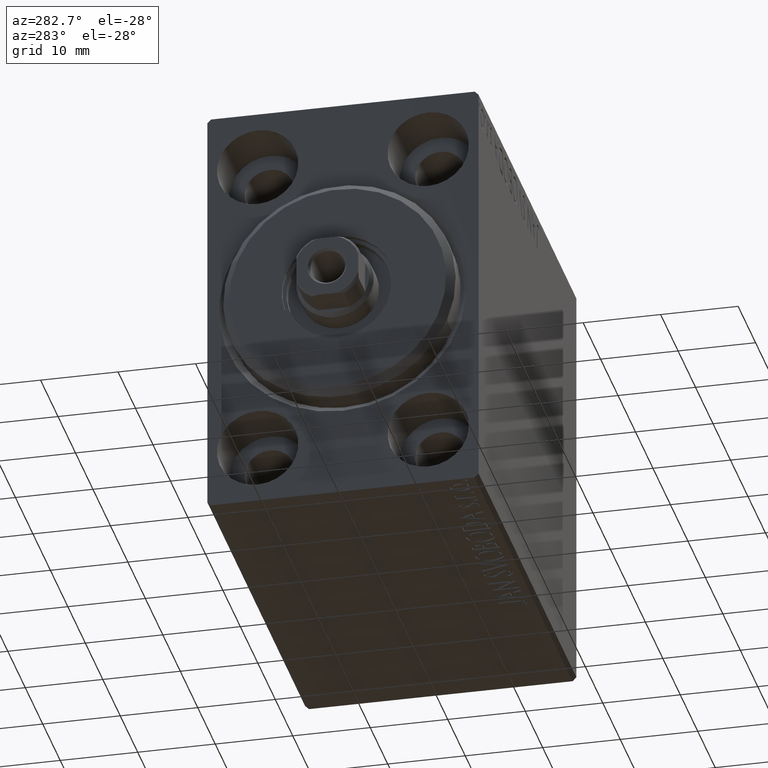
[diagram: clean part render]
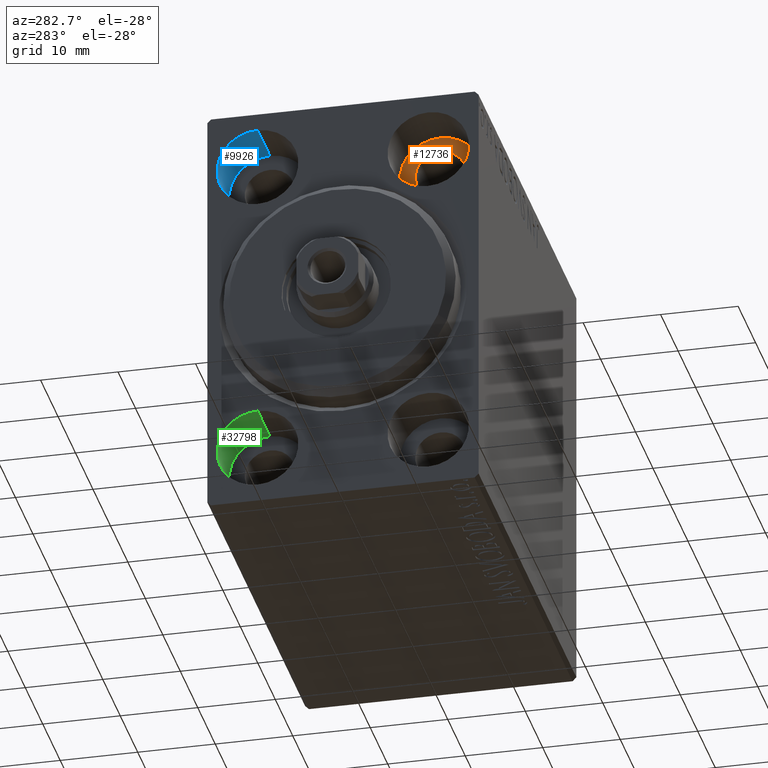
[diagram: same view with three faces highlighted in distinct colors, each labeled with its STEP entity id]
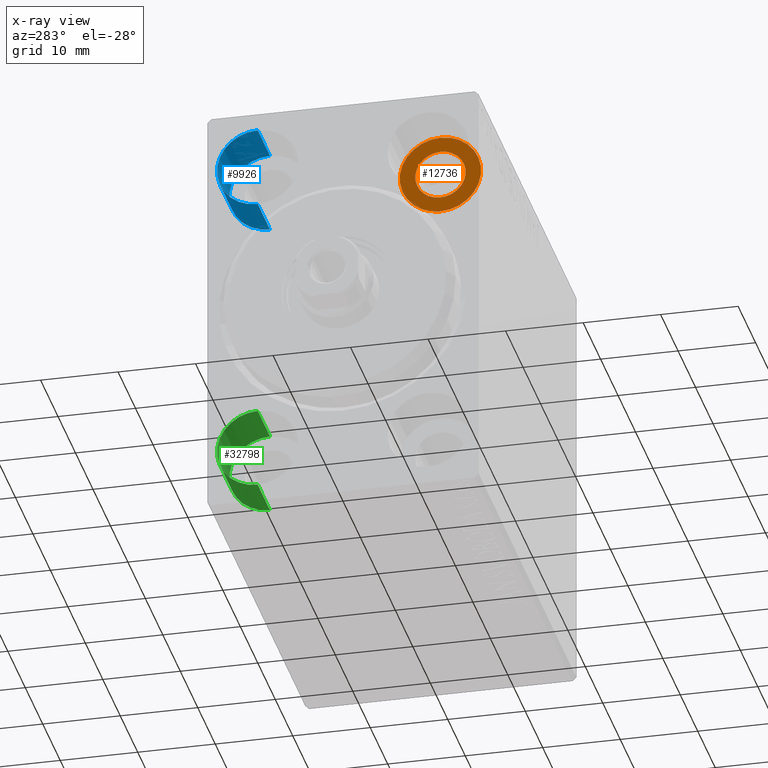
[diagram: x-ray of the same camera — body ghosted, the three highlighted faces saturated]
A machine part, auxiliary view with three faces highlighted in distinct colors.
The next image is the same camera in x-ray (body ghosted, the three faces saturated) — at least one of them is partly hidden behind the body in this view.
Their STEP definitions:

[orange] entity #12736 — the highlighted planar face has unit normal (-1, 0, 0).
#2718 = CIRCLE ( 'NONE', #39576, 5.250000000000000888 ) ;
#2827 = CIRCLE ( 'NONE', #37586, 3.249999999999999556 ) ;
#3127 = VERTEX_POINT ( 'NONE', #29700 ) ;
#3222 = CIRCLE ( 'NONE', #42918, 3.249999999999999556 ) ;
#3687 = CARTESIAN_POINT ( 'NONE',  ( 6.999999999999999112, -11.00000000000000355, 20.00000000000000000 ) ) ;
#3700 = EDGE_CURVE ( 'NONE', #15824, #22017, #2827, .T. ) ;
#4644 = DIRECTION ( 'NONE',  ( -1.000000000000000000, 0.000000000000000000, 0.000000000000000000 ) ) ;
#5614 = DIRECTION ( 'NONE',  ( -1.000000000000000000, 0.000000000000000000, 0.000000000000000000 ) ) ;
#10181 = AXIS2_PLACEMENT_3D ( 'NONE', #27323, #4644, #38402 ) ;
#10408 = ORIENTED_EDGE ( 'NONE', *, *, #3700, .F. ) ;
#10776 = DIRECTION ( 'NONE',  ( 0.000000000000000000, 0.000000000000000000, 1.000000000000000000 ) ) ;
#11548 = DIRECTION ( 'NONE',  ( 0.000000000000000000, 0.000000000000000000, 1.000000000000000000 ) ) ;
#12012 = CARTESIAN_POINT ( 'NONE',  ( 6.999999999999999112, -11.00000000000000355, 23.25000000000000000 ) ) ;
#12563 = CARTESIAN_POINT ( 'NONE',  ( 6.999999999999999112, -11.00000000000000355, 16.75000000000000000 ) ) ;
#12573 = DIRECTION ( 'NONE',  ( -1.000000000000000000, 0.000000000000000000, 0.000000000000000000 ) ) ;
#12736 = ADVANCED_FACE ( 'NONE', ( #41724, #31515 ), #24435, .T. ) ;
#15824 = VERTEX_POINT ( 'NONE', #12563 ) ;
#16349 = CARTESIAN_POINT ( 'NONE',  ( 7.000000000000000000, -11.00000000000000355, 20.00000000000000000 ) ) ;
#17085 = CARTESIAN_POINT ( 'NONE',  ( 7.000000000000000000, -11.00000000000000355, 14.75000000000000000 ) ) ;
#18115 = DIRECTION ( 'NONE',  ( -1.000000000000000000, 0.000000000000000000, 0.000000000000000000 ) ) ;
#20545 = CARTESIAN_POINT ( 'NONE',  ( 7.000000000000000000, -11.00000000000000355, 20.00000000000000000 ) ) ;
#21889 = EDGE_CURVE ( 'NONE', #36817, #3127, #28722, .T. ) ;
#22017 = VERTEX_POINT ( 'NONE', #12012 ) ;
#22735 = EDGE_CURVE ( 'NONE', #22017, #15824, #3222, .T. ) ;
#24435 = PLANE ( 'NONE',  #10181 ) ;
#27323 = CARTESIAN_POINT ( 'NONE',  ( 7.000000000000000000, 0.000000000000000000, 0.000000000000000000 ) ) ;
#27475 = ORIENTED_EDGE ( 'NONE', *, *, #22735, .F. ) ;
#28722 = CIRCLE ( 'NONE', #35823, 5.250000000000000888 ) ;
#28928 = EDGE_LOOP ( 'NONE', ( #43661, #39272 ) ) ;
#29700 = CARTESIAN_POINT ( 'NONE',  ( 7.000000000000000000, -11.00000000000000355, 25.25000000000000000 ) ) ;
#31515 = FACE_OUTER_BOUND ( 'NONE', #28928, .T. ) ;
#34651 = EDGE_LOOP ( 'NONE', ( #27475, #10408 ) ) ;
#35163 = EDGE_CURVE ( 'NONE', #3127, #36817, #2718, .T. ) ;
#35823 = AXIS2_PLACEMENT_3D ( 'NONE', #16349, #12573, #41133 ) ;
#36039 = CARTESIAN_POINT ( 'NONE',  ( 6.999999999999999112, -11.00000000000000355, 20.00000000000000000 ) ) ;
#36817 = VERTEX_POINT ( 'NONE', #17085 ) ;
#37586 = AXIS2_PLACEMENT_3D ( 'NONE', #36039, #5614, #11548 ) ;
#38402 = DIRECTION ( 'NONE',  ( 0.000000000000000000, 0.000000000000000000, 1.000000000000000000 ) ) ;
#38492 = DIRECTION ( 'NONE',  ( -1.000000000000000000, 0.000000000000000000, 0.000000000000000000 ) ) ;
#39272 = ORIENTED_EDGE ( 'NONE', *, *, #21889, .T. ) ;
#39576 = AXIS2_PLACEMENT_3D ( 'NONE', #20545, #38492, #10776 ) ;
#41133 = DIRECTION ( 'NONE',  ( 0.000000000000000000, 0.000000000000000000, 1.000000000000000000 ) ) ;
#41422 = DIRECTION ( 'NONE',  ( 0.000000000000000000, 0.000000000000000000, 1.000000000000000000 ) ) ;
#41724 = FACE_BOUND ( 'NONE', #34651, .T. ) ;
#42918 = AXIS2_PLACEMENT_3D ( 'NONE', #3687, #18115, #41422 ) ;
#43661 = ORIENTED_EDGE ( 'NONE', *, *, #35163, .T. ) ;

[blue] entity #9926 — the highlighted cylindrical surface (partial cylindrical patch) has radius 5.25 mm, axis along (-1, -0, -0).
#194 = VECTOR ( 'NONE', #5407, 1000.000000000000000 ) ;
#847 = CYLINDRICAL_SURFACE ( 'NONE', #32776, 5.250000000000000888 ) ;
#1268 = DIRECTION ( 'NONE',  ( -1.000000000000000000, -0.000000000000000000, -0.000000000000000000 ) ) ;
#3471 = CARTESIAN_POINT ( 'NONE',  ( 7.000000000000000000, 11.00000000000000355, 14.75000000000000000 ) ) ;
#5407 = DIRECTION ( 'NONE',  ( -1.000000000000000000, -0.000000000000000000, -0.000000000000000000 ) ) ;
#6382 = ORIENTED_EDGE ( 'NONE', *, *, #26239, .F. ) ;
#7785 = ORIENTED_EDGE ( 'NONE', *, *, #32558, .F. ) ;
#7939 = ORIENTED_EDGE ( 'NONE', *, *, #10438, .T. ) ;
#9926 = ADVANCED_FACE ( 'NONE', ( #31686 ), #847, .F. ) ;
#10438 = EDGE_CURVE ( 'NONE', #27262, #21310, #18322, .T. ) ;
#11720 = CARTESIAN_POINT ( 'NONE',  ( 7.000000000000000000, 11.00000000000000355, 14.75000000000000000 ) ) ;
#13257 = CIRCLE ( 'NONE', #30253, 5.250000000000000888 ) ;
#14393 = CARTESIAN_POINT ( 'NONE',  ( 7.000000000000000000, 11.00000000000000355, 20.00000000000000000 ) ) ;
#14697 = ORIENTED_EDGE ( 'NONE', *, *, #25106, .T. ) ;
#17032 = DIRECTION ( 'NONE',  ( -1.000000000000000000, -0.000000000000000000, -0.000000000000000000 ) ) ;
#17881 = CARTESIAN_POINT ( 'NONE',  ( 0.000000000000000000, 11.00000000000000355, 14.75000000000000000 ) ) ;
#18322 = LINE ( 'NONE', #32058, #194 ) ;
#20925 = CARTESIAN_POINT ( 'NONE',  ( 0.000000000000000000, 11.00000000000000355, 25.25000000000000000 ) ) ;
#21148 = DIRECTION ( 'NONE',  ( -1.000000000000000000, 0.000000000000000000, 0.000000000000000000 ) ) ;
#21310 = VERTEX_POINT ( 'NONE', #20925 ) ;
#24606 = DIRECTION ( 'NONE',  ( 0.000000000000000000, 0.000000000000000000, 1.000000000000000000 ) ) ;
#25106 = EDGE_CURVE ( 'NONE', #21310, #25830, #42991, .T. ) ;
#25830 = VERTEX_POINT ( 'NONE', #17881 ) ;
#26239 = EDGE_CURVE ( 'NONE', #27262, #36862, #13257, .T. ) ;
#26340 = LINE ( 'NONE', #3471, #33878 ) ;
#27262 = VERTEX_POINT ( 'NONE', #27332 ) ;
#27332 = CARTESIAN_POINT ( 'NONE',  ( 7.000000000000000000, 11.00000000000000355, 25.25000000000000000 ) ) ;
#29525 = CARTESIAN_POINT ( 'NONE',  ( 0.000000000000000000, 11.00000000000000355, 20.00000000000000000 ) ) ;
#30253 = AXIS2_PLACEMENT_3D ( 'NONE', #31989, #21148, #34684 ) ;
#31686 = FACE_OUTER_BOUND ( 'NONE', #39417, .T. ) ;
#31989 = CARTESIAN_POINT ( 'NONE',  ( 7.000000000000000000, 11.00000000000000355, 20.00000000000000000 ) ) ;
#32058 = CARTESIAN_POINT ( 'NONE',  ( 7.000000000000000000, 11.00000000000000355, 25.25000000000000000 ) ) ;
#32204 = DIRECTION ( 'NONE',  ( 0.000000000000000000, 0.000000000000000000, 1.000000000000000000 ) ) ;
#32416 = DIRECTION ( 'NONE',  ( -1.000000000000000000, 0.000000000000000000, 0.000000000000000000 ) ) ;
#32558 = EDGE_CURVE ( 'NONE', #36862, #25830, #26340, .T. ) ;
#32776 = AXIS2_PLACEMENT_3D ( 'NONE', #14393, #1268, #24606 ) ;
#33797 = AXIS2_PLACEMENT_3D ( 'NONE', #29525, #32416, #32204 ) ;
#33878 = VECTOR ( 'NONE', #17032, 1000.000000000000000 ) ;
#34684 = DIRECTION ( 'NONE',  ( 0.000000000000000000, 0.000000000000000000, 1.000000000000000000 ) ) ;
#36862 = VERTEX_POINT ( 'NONE', #11720 ) ;
#39417 = EDGE_LOOP ( 'NONE', ( #7785, #6382, #7939, #14697 ) ) ;
#42991 = CIRCLE ( 'NONE', #33797, 5.250000000000000888 ) ;

[green] entity #32798 — the highlighted cylindrical surface (partial cylindrical patch) has radius 5.25 mm, axis along (-1, -0, -0).
#50 = CARTESIAN_POINT ( 'NONE',  ( 7.000000000000000000, 11.00000000000000355, -20.00000000000000000 ) ) ;
#697 = CYLINDRICAL_SURFACE ( 'NONE', #23969, 5.250000000000000888 ) ;
#814 = DIRECTION ( 'NONE',  ( -1.000000000000000000, -0.000000000000000000, -0.000000000000000000 ) ) ;
#1234 = LINE ( 'NONE', #24785, #31209 ) ;
#2438 = AXIS2_PLACEMENT_3D ( 'NONE', #26526, #9666, #23196 ) ;
#2490 = CARTESIAN_POINT ( 'NONE',  ( 7.000000000000000000, 11.00000000000000355, -14.75000000000000000 ) ) ;
#4893 = ORIENTED_EDGE ( 'NONE', *, *, #34243, .F. ) ;
#4906 = VERTEX_POINT ( 'NONE', #27636 ) ;
#6893 = ORIENTED_EDGE ( 'NONE', *, *, #34330, .F. ) ;
#7367 = FACE_OUTER_BOUND ( 'NONE', #29140, .T. ) ;
#8360 = CIRCLE ( 'NONE', #38162, 5.250000000000000888 ) ;
#9663 = DIRECTION ( 'NONE',  ( -1.000000000000000000, -0.000000000000000000, -0.000000000000000000 ) ) ;
#9666 = DIRECTION ( 'NONE',  ( -1.000000000000000000, 0.000000000000000000, 0.000000000000000000 ) ) ;
#11198 = DIRECTION ( 'NONE',  ( -1.000000000000000000, 0.000000000000000000, 0.000000000000000000 ) ) ;
#12193 = ORIENTED_EDGE ( 'NONE', *, *, #40502, .T. ) ;
#13874 = DIRECTION ( 'NONE',  ( 0.000000000000000000, 0.000000000000000000, 1.000000000000000000 ) ) ;
#20060 = EDGE_CURVE ( 'NONE', #29093, #4906, #24448, .T. ) ;
#23196 = DIRECTION ( 'NONE',  ( 0.000000000000000000, 0.000000000000000000, 1.000000000000000000 ) ) ;
#23969 = AXIS2_PLACEMENT_3D ( 'NONE', #50, #37121, #24019 ) ;
#24019 = DIRECTION ( 'NONE',  ( 0.000000000000000000, 0.000000000000000000, 1.000000000000000000 ) ) ;
#24084 = CARTESIAN_POINT ( 'NONE',  ( 7.000000000000000000, 11.00000000000000355, -25.25000000000000000 ) ) ;
#24299 = CARTESIAN_POINT ( 'NONE',  ( 7.000000000000000000, 11.00000000000000355, -20.00000000000000000 ) ) ;
#24448 = CIRCLE ( 'NONE', #2438, 5.250000000000000888 ) ;
#24785 = CARTESIAN_POINT ( 'NONE',  ( 7.000000000000000000, 11.00000000000000355, -14.75000000000000000 ) ) ;
#24813 = VERTEX_POINT ( 'NONE', #2490 ) ;
#26526 = CARTESIAN_POINT ( 'NONE',  ( 0.000000000000000000, 11.00000000000000355, -20.00000000000000000 ) ) ;
#26968 = LINE ( 'NONE', #30069, #28218 ) ;
#27594 = ORIENTED_EDGE ( 'NONE', *, *, #20060, .T. ) ;
#27636 = CARTESIAN_POINT ( 'NONE',  ( 0.000000000000000000, 11.00000000000000355, -25.25000000000000000 ) ) ;
#28218 = VECTOR ( 'NONE', #9663, 1000.000000000000000 ) ;
#29093 = VERTEX_POINT ( 'NONE', #33057 ) ;
#29140 = EDGE_LOOP ( 'NONE', ( #4893, #6893, #12193, #27594 ) ) ;
#30069 = CARTESIAN_POINT ( 'NONE',  ( 7.000000000000000000, 11.00000000000000355, -25.25000000000000000 ) ) ;
#30637 = VERTEX_POINT ( 'NONE', #24084 ) ;
#31209 = VECTOR ( 'NONE', #814, 1000.000000000000000 ) ;
#32798 = ADVANCED_FACE ( 'NONE', ( #7367 ), #697, .F. ) ;
#33057 = CARTESIAN_POINT ( 'NONE',  ( 0.000000000000000000, 11.00000000000000355, -14.75000000000000000 ) ) ;
#34243 = EDGE_CURVE ( 'NONE', #30637, #4906, #26968, .T. ) ;
#34330 = EDGE_CURVE ( 'NONE', #24813, #30637, #8360, .T. ) ;
#37121 = DIRECTION ( 'NONE',  ( -1.000000000000000000, -0.000000000000000000, -0.000000000000000000 ) ) ;
#38162 = AXIS2_PLACEMENT_3D ( 'NONE', #24299, #11198, #13874 ) ;
#40502 = EDGE_CURVE ( 'NONE', #24813, #29093, #1234, .T. ) ;